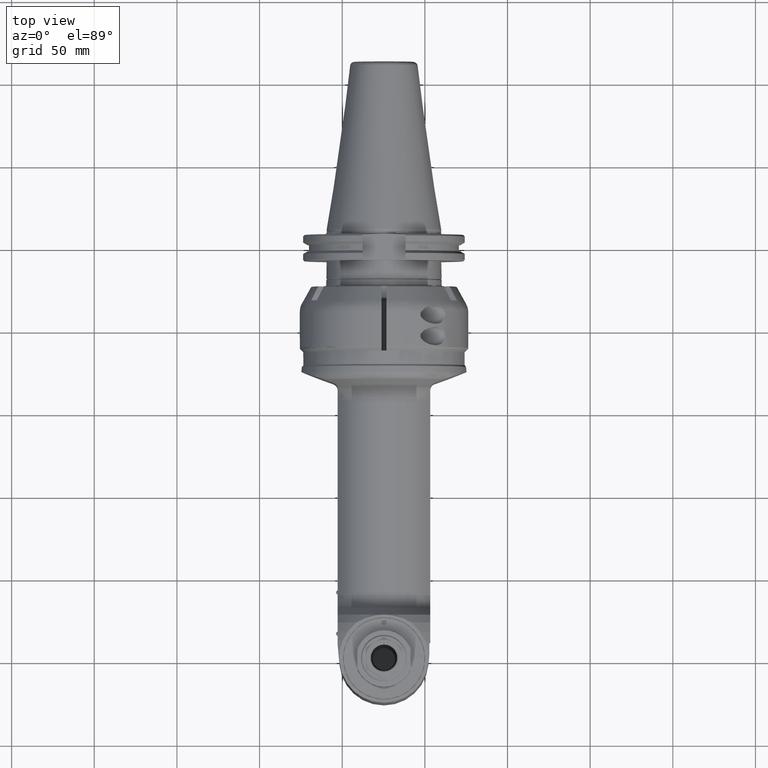
[diagram: clean part render]
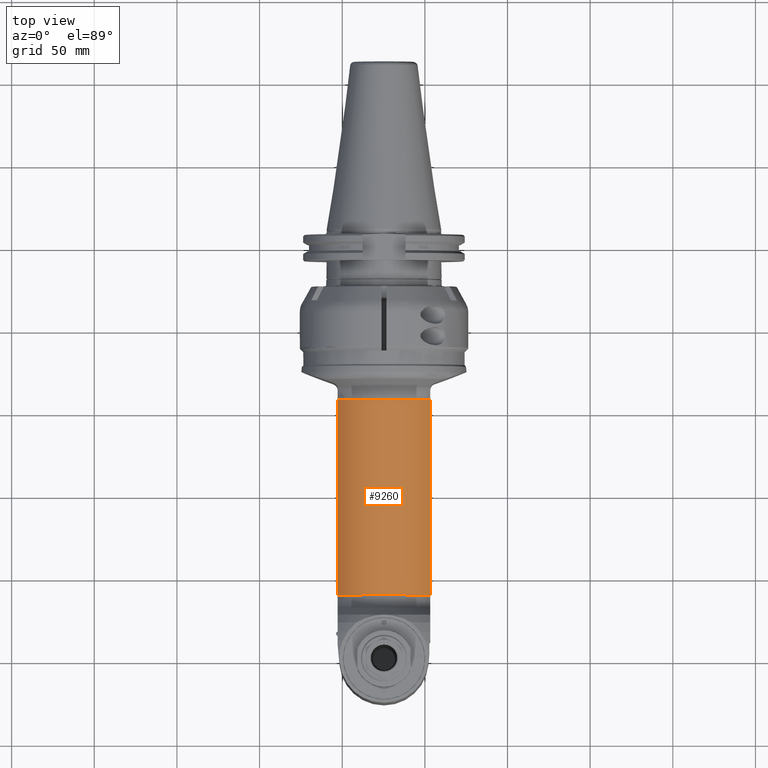
[diagram: same view with one face highlighted and labeled with its STEP entity id]
A machine part, top view. The second image highlights one B-rep face of the part: STEP entity #9260.
In plain terms, the highlighted cylindrical surface (partial cylindrical patch) has radius 32 mm, axis along (0, 1, 0).
Its self-contained STEP definition (entity closure, byte-faithful):
#819=LINE('',#16382,#1417);
#826=LINE('',#16546,#1424);
#1417=VECTOR('',#12625,118.3910979735);
#1424=VECTOR('',#12648,118.3910979735);
#1692=CYLINDRICAL_SURFACE('',#10280,32.);
#2430=FACE_OUTER_BOUND('',#3044,.T.);
#3044=EDGE_LOOP('',(#8012,#8013,#8014,#8015));
#3648=CIRCLE('',#10278,32.);
#3650=CIRCLE('',#10281,32.);
#4429=VERTEX_POINT('',#16368);
#4430=VERTEX_POINT('',#16381);
#4452=VERTEX_POINT('',#16521);
#4455=VERTEX_POINT('',#16545);
#5657=EDGE_CURVE('',#4430,#4429,#819,.T.);
#5682=EDGE_CURVE('',#4452,#4429,#3648,.T.);
#5686=EDGE_CURVE('',#4452,#4455,#826,.T.);
#5687=EDGE_CURVE('',#4430,#4455,#3650,.T.);
#8012=ORIENTED_EDGE('',*,*,#5682,.F.);
#8013=ORIENTED_EDGE('',*,*,#5686,.T.);
#8014=ORIENTED_EDGE('',*,*,#5687,.F.);
#8015=ORIENTED_EDGE('',*,*,#5657,.T.);
#9260=ADVANCED_FACE('',(#2430),#1692,.T.);
#10278=AXIS2_PLACEMENT_3D('',#16522,#12642,#12643);
#10280=AXIS2_PLACEMENT_3D('',#16544,#12646,#12647);
#10281=AXIS2_PLACEMENT_3D('',#16547,#12649,#12650);
#12625=DIRECTION('',(-1.,0.,0.));
#12642=DIRECTION('center_axis',(-1.,0.,0.));
#12643=DIRECTION('ref_axis',(0.,-0.484122918275906,-0.875000000000012));
#12646=DIRECTION('center_axis',(-1.,0.,0.));
#12647=DIRECTION('ref_axis',(0.,-1.,0.));
#12648=DIRECTION('',(1.,0.,0.));
#12649=DIRECTION('center_axis',(1.,0.,0.));
#12650=DIRECTION('ref_axis',(0.,-1.,0.));
#16368=CARTESIAN_POINT('',(32.99009987301,-15.49193338483,28.));
#16381=CARTESIAN_POINT('',(151.3811978465,-15.49193338483,28.));
#16382=CARTESIAN_POINT('',(151.3811978465,-15.49193338483,28.));
#16521=CARTESIAN_POINT('',(32.99009987301,-15.49193338483,-28.));
#16522=CARTESIAN_POINT('Origin',(32.99009987301,0.,0.));
#16544=CARTESIAN_POINT('Origin',(41.64644709714,0.,0.));
#16545=CARTESIAN_POINT('',(151.3811978465,-15.49193338483,-28.));
#16546=CARTESIAN_POINT('',(32.99009987301,-15.49193338483,-28.));
#16547=CARTESIAN_POINT('Origin',(151.3811978465,0.,0.));